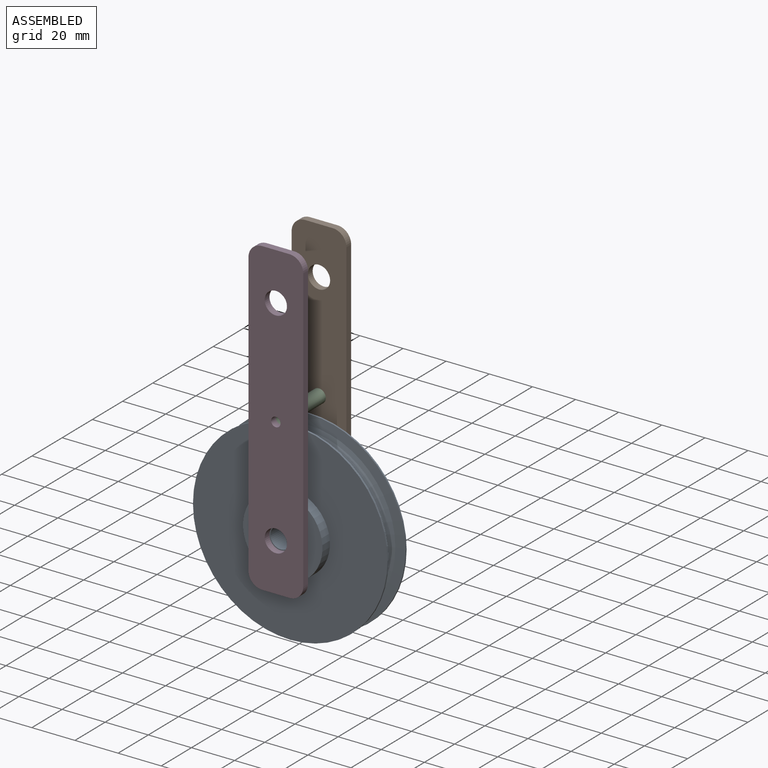
[diagram: assembled view]
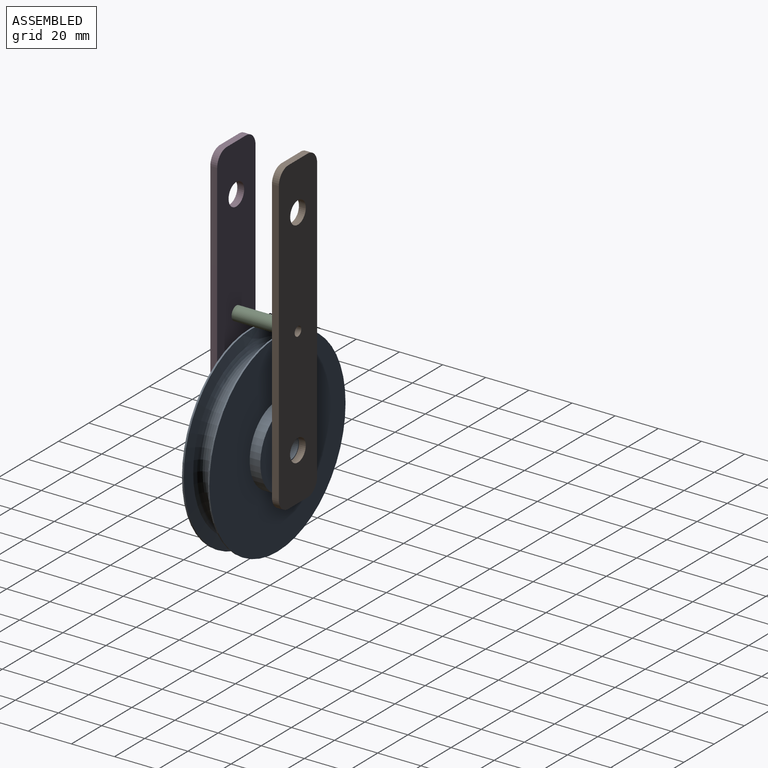
[diagram: assembled view, second angle]
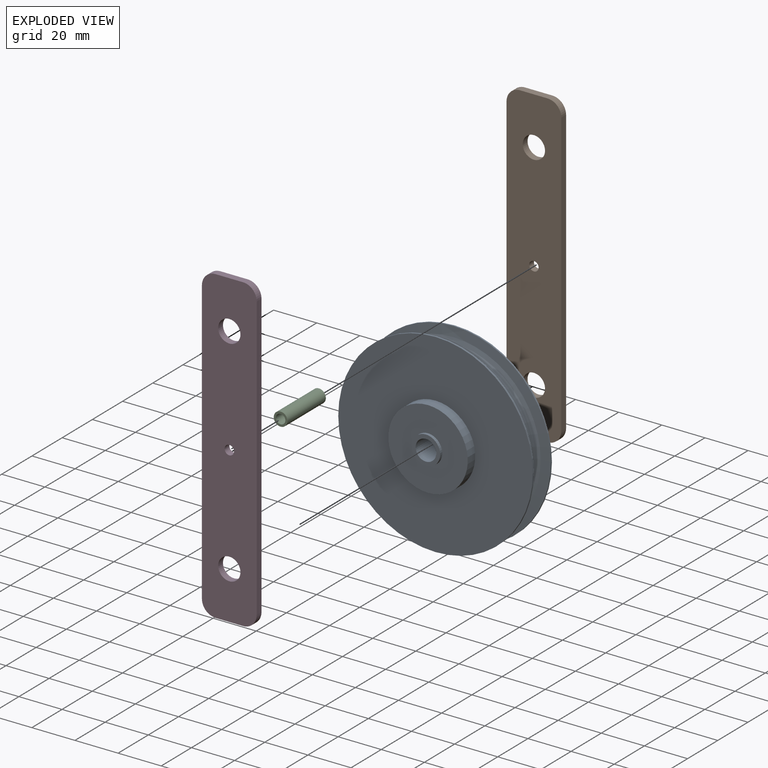
[diagram: exploded view]
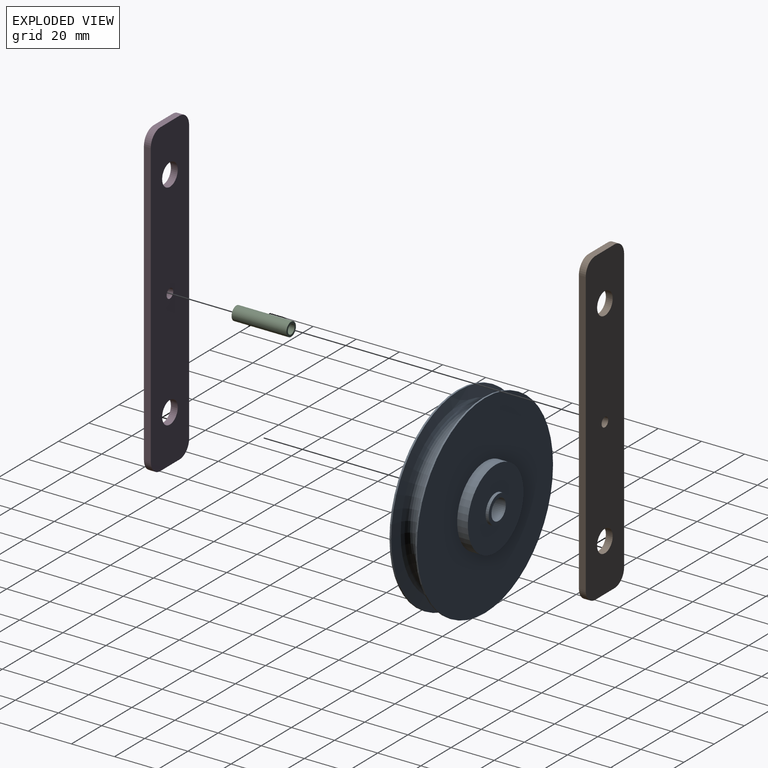
[diagram: exploded view, second angle]
ASSEMBLY  parts=4 mates=3
PART A: 14 faces, bbox 90.2x25.4x90.2 mm
  f0: cylinder r=45.09mm len=90.17mm, axis (0,1,0), area 220.3mm2, adj f2,f13
  f1: cylinder r=45.09mm len=90.17mm, axis (0,1,0), area 196.5mm2, adj f3,f13
  f2: plane 90.17x90.17mm, normal (0,-1,0), area 5320.4mm2, adj f0,f4
  f3: plane 90.17x90.17mm, normal (0,1,0), area 5320.4mm2, adj f1,f5
  f4: cylinder r=18.41mm len=36.83mm, axis (0,1,0), area 573.1mm2, adj f2,f6
  f5: cylinder r=18.41mm len=36.83mm, axis (0,1,0), area 573.1mm2, adj f3,f7
  f6: plane 36.83x36.83mm, normal (0,-1,0), area 928.3mm2, adj f4,f8
  f7: plane 36.83x36.83mm, normal (0,1,0), area 928.3mm2, adj f5,f10
  f8: cylinder r=6.6mm len=13.21mm, axis (0,1,0), area 58mm2, adj f6,f11
  f9: cylinder r=4.76mm len=25.4mm, axis (0,1,0), area 760.1mm2, adj f11,f12
  f10: cylinder r=6.6mm len=13.21mm, axis (0,1,0), area 58mm2, adj f7,f12
  f11: plane 13.21x13.21mm, normal (0,-1,0), area 65.8mm2, adj f8,f9
  f12: plane 13.21x13.21mm, normal (0,1,0), area 65.8mm2, adj f9,f10
  f13: revolved ~90.17x90.17mm, area 12463.4mm2, adj f0,f1
PART B: 13 faces, bbox 25.4x3.2x144.1 mm
  f0: plane 131.37x3.18mm, normal (-1,0,0), area 417.1mm2, adj f1,f10,f11,f12
  f1: cylinder r=6.35mm len=6.35mm, axis (0,1,0), area 31.7mm2, adj f0,f2,f11,f12
  f2: plane 12.7x3.18mm, normal (0,0,-1), area 40.3mm2, adj f1,f3,f11,f12
  f3: cylinder r=6.35mm len=6.35mm, axis (0,1,0), area 31.7mm2, adj f2,f4,f11,f12
  f4: plane 131.37x3.18mm, normal (1,0,0), area 417.1mm2, adj f3,f5,f11,f12
  f5: cylinder r=6.35mm len=6.35mm, axis (0,1,0), area 31.7mm2, adj f4,f6,f11,f12
  f6: plane 12.7x3.18mm, normal (0,0,1), area 40.3mm2, adj f5,f10,f11,f12
  f7: cylinder r=5.16mm len=10.32mm, axis (0,1,0), area 102.9mm2, adj f11,f12
  f8: cylinder r=2.18mm len=4.37mm, axis (0,1,0), area 43.5mm2, adj f11,f12
  f9: cylinder r=5.16mm len=10.32mm, axis (0,1,0), area 102.9mm2, adj f11,f12
  f10: cylinder r=6.35mm len=6.35mm, axis (0,1,0), area 31.7mm2, adj f0,f6,f11,f12
  f11: plane 144.07x25.4mm, normal (0,-1,0), area 3442.4mm2, adj f0,f1,f2,f3,f4,f5,f6,f7
  f12: plane 144.07x25.4mm, normal (0,1,0), area 3442.4mm2, adj f0,f1,f2,f3,f4,f5,f6,f7
PART C: 4 faces, bbox 6.4x25.4x6.4 mm
  f0: cylinder r=2.18mm len=25.4mm, axis (0,1,0), area 348.6mm2, adj f2,f3
  f1: cylinder r=3.17mm len=25.4mm, axis (0,1,0), area 506.7mm2, adj f2,f3
  f2: plane 6.35x6.35mm, normal (0,-1,0), area 16.7mm2, adj f0,f1
  f3: plane 6.35x6.35mm, normal (0,1,0), area 16.7mm2, adj f0,f1
PART D: same geometry as B
PLACE A t=(38.67,42.22,1.46)mm
PLACE B t=(25.97,58.1,-20.76)mm
PLACE C t=(38.67,54.92,51.27)mm
PLACE D t=(25.97,29.52,-20.76)mm
MATE fastened A.f9 <-> D.f7  axis (0,-1,0) through (38.67,29.52,1.46)mm
MATE fastened C.f0 <-> D.f8  axis (0,-1,0) through (38.67,29.52,51.27)mm
MATE fastened C.f0 <-> B.f8  axis (0,1,0) through (38.67,54.92,51.27)mm
